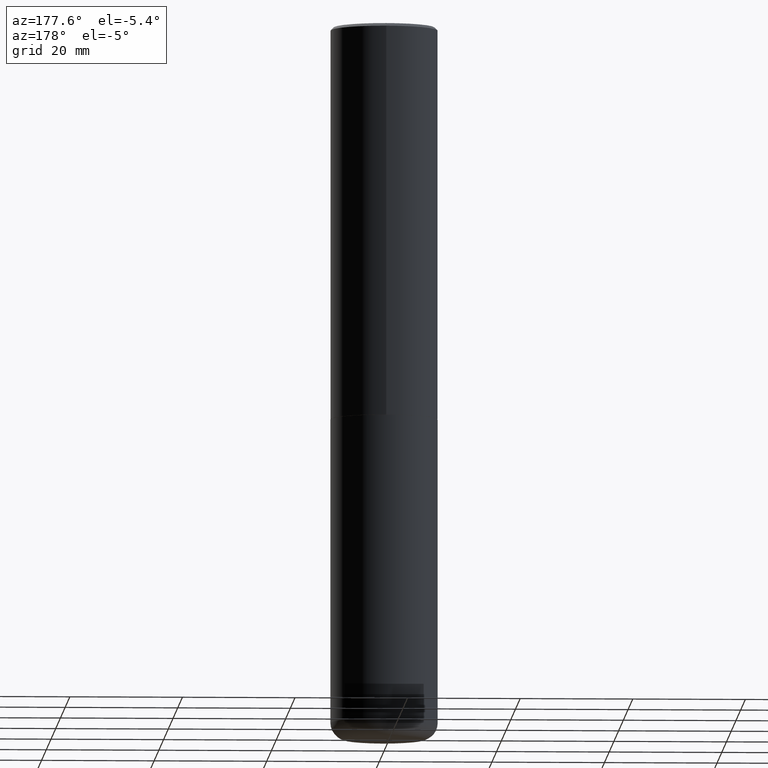
[diagram: clean part render]
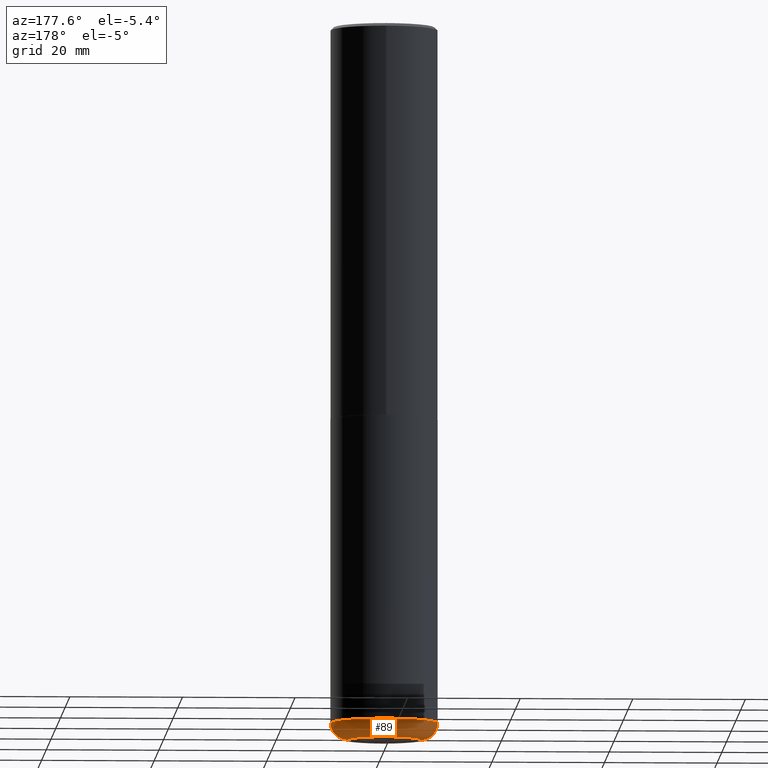
[diagram: same view with one face highlighted and labeled with its STEP entity id]
A machine part, auxiliary view. The second image highlights one B-rep face of the part: STEP entity #89.
In plain terms, the highlighted toroidal blend (fillet) surface has major radius 6.477 mm and minor (blend) radius 3.048 mm.
Its self-contained STEP definition (entity closure, byte-faithful):
#17 = CARTESIAN_POINT ( 'NONE',  ( 0.3749999999999999445, -1.965703993768690011E-14, -4.880000000000000782 ) ) ;
#19 = EDGE_CURVE ( 'NONE', #238, #78, #337, .T. ) ;
#23 = CIRCLE ( 'NONE', #56, 0.1199999999999999539 ) ;
#27 = ORIENTED_EDGE ( 'NONE', *, *, #19, .F. ) ;
#28 = DIRECTION ( 'NONE',  ( -2.445468806185136597E-29, 3.491481338843145583E-15, 1.000000000000000000 ) ) ;
#34 = DIRECTION ( 'NONE',  ( 1.000000000000000000, -6.982962677686270655E-15, 0.000000000000000000 ) ) ;
#56 = AXIS2_PLACEMENT_3D ( 'NONE', #289, #358, #226 ) ;
#62 = AXIS2_PLACEMENT_3D ( 'NONE', #380, #247, #96 ) ;
#72 = CARTESIAN_POINT ( 'NONE',  ( -0.3749999999999999445, -1.437389367445417440E-14, -4.880000000000000782 ) ) ;
#73 = TOROIDAL_SURFACE ( 'NONE', #62, 0.2550000000000000044, 0.1199999999999999123 ) ;
#76 = AXIS2_PLACEMENT_3D ( 'NONE', #383, #28, #384 ) ;
#78 = VERTEX_POINT ( 'NONE', #17 ) ;
#89 = ADVANCED_FACE ( 'NONE', ( #405 ), #73, .T. ) ;
#94 = CIRCLE ( 'NONE', #353, 0.2550000000000000044 ) ;
#96 = DIRECTION ( 'NONE',  ( 1.000000000000000000, -6.982962677686263555E-15, 4.883557194083111219E-29 ) ) ;
#99 = CARTESIAN_POINT ( 'NONE',  ( 1.222734403092568523E-28, -1.745740669421572989E-14, -5.000000000000000000 ) ) ;
#105 = AXIS2_PLACEMENT_3D ( 'NONE', #245, #331, #34 ) ;
#110 = EDGE_LOOP ( 'NONE', ( #277, #145, #298, #27 ) ) ;
#131 = CARTESIAN_POINT ( 'NONE',  ( 0.2550000000000000044, -1.923806217702572663E-14, -5.000000000000000000 ) ) ;
#145 = ORIENTED_EDGE ( 'NONE', *, *, #181, .T. ) ;
#179 = CARTESIAN_POINT ( 'NONE',  ( -0.2550000000000000044, -1.500970819624082478E-14, -5.000000000000000000 ) ) ;
#181 = EDGE_CURVE ( 'NONE', #366, #213, #23, .T. ) ;
#195 = DIRECTION ( 'NONE',  ( 1.000000000000000000, -6.982962677686267499E-15, 0.000000000000000000 ) ) ;
#205 = EDGE_CURVE ( 'NONE', #78, #213, #273, .T. ) ;
#213 = VERTEX_POINT ( 'NONE', #72 ) ;
#226 = DIRECTION ( 'NONE',  ( -1.000000000000000000, 7.105427357600993970E-15, 0.000000000000000000 ) ) ;
#233 = EDGE_CURVE ( 'NONE', #238, #366, #94, .T. ) ;
#238 = VERTEX_POINT ( 'NONE', #131 ) ;
#245 = CARTESIAN_POINT ( 'NONE',  ( 0.2550000000000000044, -1.881908441636454685E-14, -4.880000000000000782 ) ) ;
#247 = DIRECTION ( 'NONE',  ( -2.445468806185136597E-29, 3.491481338843145583E-15, 1.000000000000000000 ) ) ;
#273 = CIRCLE ( 'NONE', #76, 0.3750000000000000555 ) ;
#277 = ORIENTED_EDGE ( 'NONE', *, *, #233, .T. ) ;
#289 = CARTESIAN_POINT ( 'NONE',  ( -0.2550000000000000044, -1.522654495736629538E-14, -4.880000000000000782 ) ) ;
#298 = ORIENTED_EDGE ( 'NONE', *, *, #205, .F. ) ;
#331 = DIRECTION ( 'NONE',  ( -6.982962677686266711E-15, -1.000000000000000000, 3.491481338843145583E-15 ) ) ;
#337 = CIRCLE ( 'NONE', #105, 0.1199999999999999539 ) ;
#353 = AXIS2_PLACEMENT_3D ( 'NONE', #99, #417, #195 ) ;
#358 = DIRECTION ( 'NONE',  ( 7.105427357601001859E-15, 1.000000000000000000, -3.491481338843145583E-15 ) ) ;
#366 = VERTEX_POINT ( 'NONE', #179 ) ;
#380 = CARTESIAN_POINT ( 'NONE',  ( 1.193388777418346668E-28, -1.703842893355455010E-14, -4.880000000000000782 ) ) ;
#383 = CARTESIAN_POINT ( 'NONE',  ( 1.193388777418346668E-28, -1.703842893355455010E-14, -4.880000000000000782 ) ) ;
#384 = DIRECTION ( 'NONE',  ( 1.000000000000000000, -6.982962677686261189E-15, 0.000000000000000000 ) ) ;
#405 = FACE_OUTER_BOUND ( 'NONE', #110, .T. ) ;
#417 = DIRECTION ( 'NONE',  ( -2.445468806185136597E-29, 3.491481338843145583E-15, 1.000000000000000000 ) ) ;